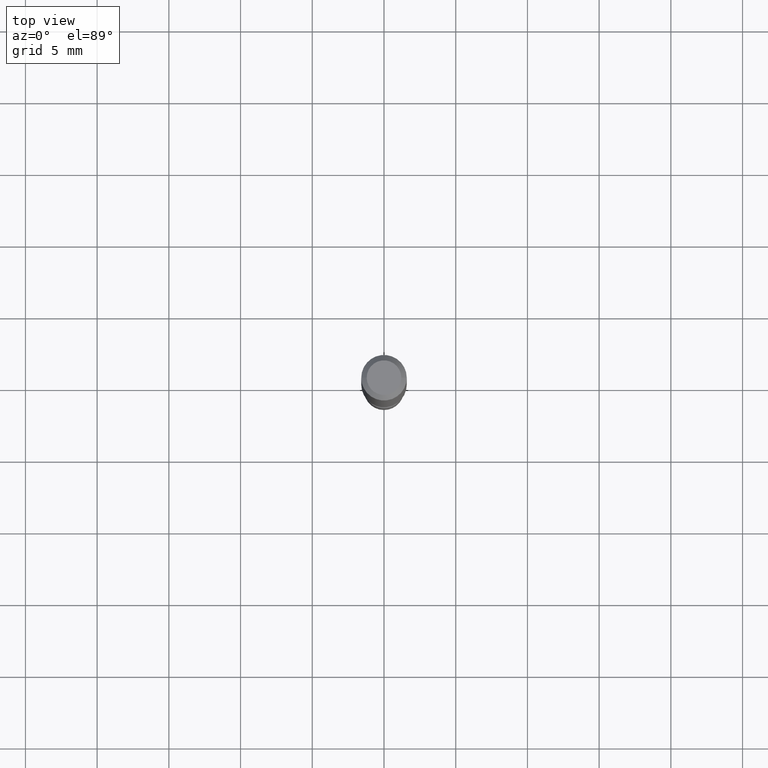
[diagram: clean part render]
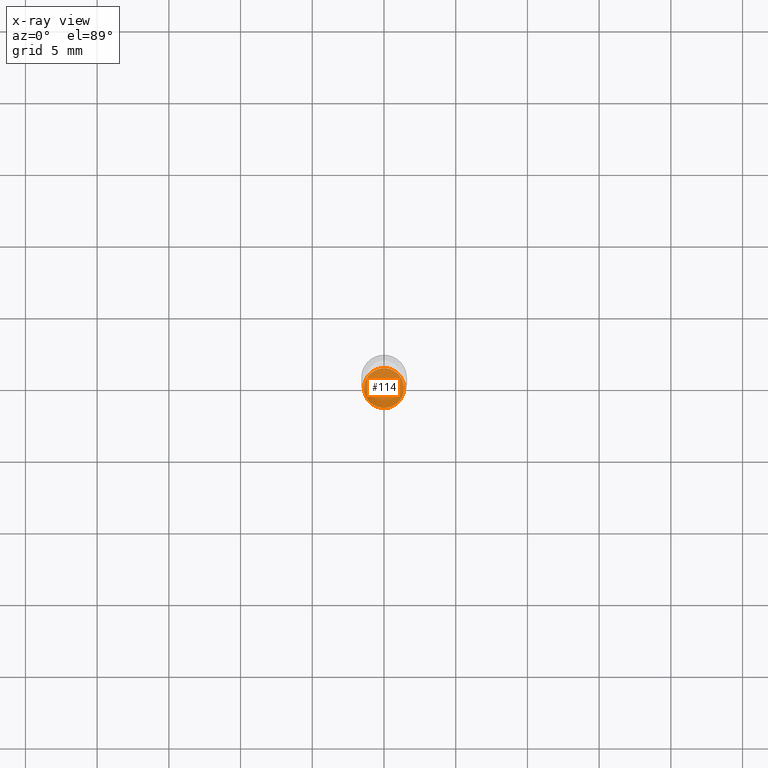
[diagram: x-ray — body ghosted, one internal face saturated and labeled with its STEP entity id]
A machine part, top view, then the same camera in x-ray: the body is ghosted and one INTERNAL B-rep face — a face not visible from any outside direction — is saturated and labeled: STEP entity #114.
In plain terms, the highlighted planar face has unit normal (-0, 0, 1).
Its self-contained STEP definition (entity closure, byte-faithful):
#94 = DIRECTION ( 'NONE',  ( 1.000000000000000000, -6.982962677686262766E-15, 0.000000000000000000 ) ) ;
#114 = ADVANCED_FACE ( 'NONE', ( #389 ), #551, .F. ) ;
#132 = EDGE_LOOP ( 'NONE', ( #358, #171 ) ) ;
#156 = DIRECTION ( 'NONE',  ( -2.445468806185136597E-29, 3.491481338843145583E-15, 1.000000000000000000 ) ) ;
#171 = ORIENTED_EDGE ( 'NONE', *, *, #277, .F. ) ;
#212 = CARTESIAN_POINT ( 'NONE',  ( -0.05500000000000004191, -5.439975331199998395E-15, -1.669999999999999929 ) ) ;
#217 = DIRECTION ( 'NONE',  ( -2.438088387897960049E-29, 3.491481338843145188E-15, 1.000000000000000000 ) ) ;
#228 = AXIS2_PLACEMENT_3D ( 'NONE', #447, #156, #297 ) ;
#239 = VERTEX_POINT ( 'NONE', #212 ) ;
#277 = EDGE_CURVE ( 'NONE', #239, #559, #423, .T. ) ;
#297 = DIRECTION ( 'NONE',  ( 1.000000000000000000, -6.982962677686262766E-15, 0.000000000000000000 ) ) ;
#330 = CARTESIAN_POINT ( 'NONE',  ( 4.083932906329177803E-29, -5.830773835868053056E-15, -1.669999999999999929 ) ) ;
#342 = EDGE_CURVE ( 'NONE', #559, #239, #444, .T. ) ;
#355 = CARTESIAN_POINT ( 'NONE',  ( 0.05500000000000004191, -6.214836783140797252E-15, -1.669999999999999929 ) ) ;
#358 = ORIENTED_EDGE ( 'NONE', *, *, #342, .F. ) ;
#389 = FACE_OUTER_BOUND ( 'NONE', #132, .T. ) ;
#422 = CARTESIAN_POINT ( 'NONE',  ( 3.840629472727855124E-16, 0.05499999999999417161, -1.670000000000000151 ) ) ;
#423 = CIRCLE ( 'NONE', #517, 0.05500000000000000028 ) ;
#444 = CIRCLE ( 'NONE', #228, 0.05500000000000000028 ) ;
#447 = CARTESIAN_POINT ( 'NONE',  ( 4.083932906329177803E-29, -5.830773835868053056E-15, -1.669999999999999929 ) ) ;
#489 = DIRECTION ( 'NONE',  ( -2.445468806185136597E-29, 3.491481338843145583E-15, 1.000000000000000000 ) ) ;
#509 = AXIS2_PLACEMENT_3D ( 'NONE', #422, #217, #538 ) ;
#517 = AXIS2_PLACEMENT_3D ( 'NONE', #330, #489, #94 ) ;
#538 = DIRECTION ( 'NONE',  ( 1.000000000000000000, -6.982962677686265922E-15, 4.876176775795935793E-29 ) ) ;
#551 = PLANE ( 'NONE',  #509 ) ;
#559 = VERTEX_POINT ( 'NONE', #355 ) ;